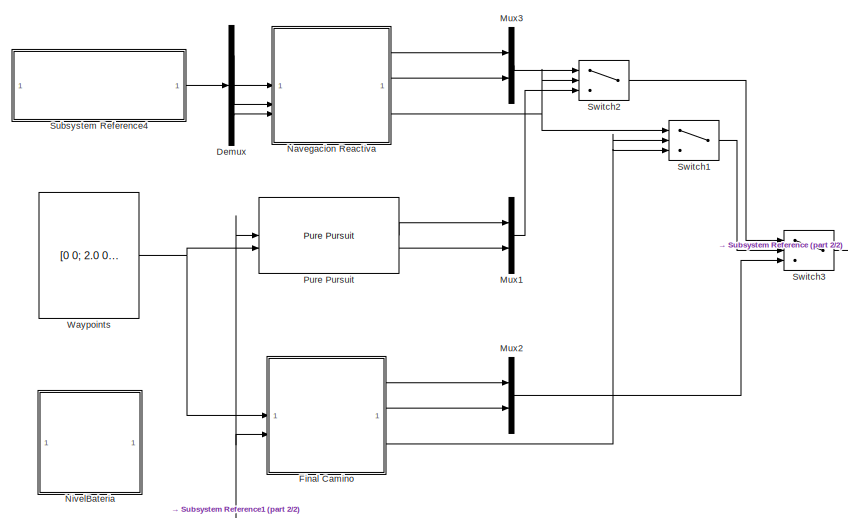
[diagram: root canvas - part 1/2, left side, full height]
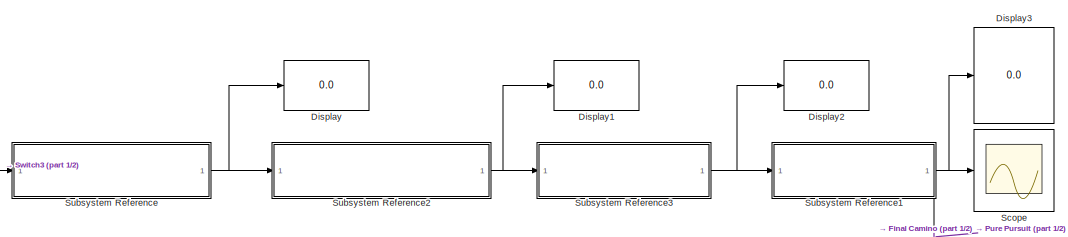
[diagram: root canvas - part 2/2, middle right region]
MODEL slx_3cca3829bd27
KIND model
CONFIG AbsTol = auto
CONFIG EnableMultiTasking = on
CONFIG FixedStep = auto
CONFIG MaxStep = auto
CONFIG MinStep = auto
CONFIG RelTol = 1e-3
CONFIG SampleTimeConstraint = Unconstrained
CONFIG SolverName = FixedStepDiscrete
CONFIG StartTime = 0.0
CONFIG StopTime = inf
WORKSPACE source: mxarray member
WORKSPACE d = 0.18
BLOCK [Demux] Demux
  Outputs = 3
BLOCK [Display] Display
  Decimation = 1
BLOCK [Display] Display1
  Decimation = 1
BLOCK [Display] Display2
  Decimation = 1
BLOCK [Display] Display3
  Decimation = 1
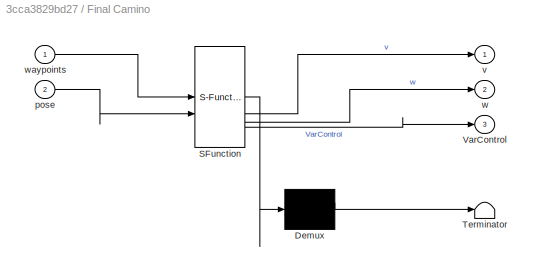
BLOCK [SubSystem] Final Camino
  ErrorFcn = Stateflow.Translate.translate
  PermitHierarchicalResolution = ExplicitOnly
  SFBlockType = MATLAB Function
  TreatAsAtomicUnit = on
BLOCK [Demux] Final Camino/ Demux 
  Outputs = 1
BLOCK [S-Function] Final Camino/ SFunction 
  EnableBusSupport = on
  FunctionName = sf_sfun
  PortCounts = [2 4]
  SFcnIsStateOwnerBlock = off
  SFunctionDeploymentMode = off
  Tag = Stateflow S-Function 5
BLOCK [Terminator] Final Camino/ Terminator 
BLOCK [Outport] Final Camino/VarControl
  Port = 3
BLOCK [Inport] Final Camino/pose
  Port = 2
BLOCK [Outport] Final Camino/v
BLOCK [Outport] Final Camino/w
  Port = 2
BLOCK [Inport] Final Camino/waypoints
BLOCK [Mux] Mux1
  DisplayOption = bar
  Inputs = 2
BLOCK [Mux] Mux2
  DisplayOption = bar
  Inputs = 2
BLOCK [Mux] Mux3
  DisplayOption = bar
  Inputs = 2
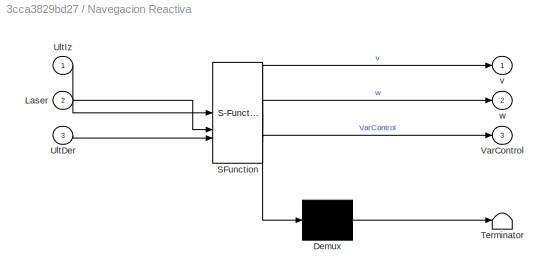
BLOCK [SubSystem] Navegacion Reactiva
  ErrorFcn = Stateflow.Translate.translate
  PermitHierarchicalResolution = ExplicitOnly
  SFBlockType = Chart
  TreatAsAtomicUnit = on
BLOCK [Demux] Navegacion Reactiva/ Demux 
  Outputs = 1
BLOCK [S-Function] Navegacion Reactiva/ SFunction 
  EnableBusSupport = on
  FunctionName = sf_sfun
  PortCounts = [3 4]
  SFcnIsStateOwnerBlock = off
  SFunctionDeploymentMode = off
  Tag = Stateflow S-Function 4
BLOCK [Terminator] Navegacion Reactiva/ Terminator 
BLOCK [Inport] Navegacion Reactiva/Laser
  Port = 2
BLOCK [Inport] Navegacion Reactiva/UltDer
  Port = 3
BLOCK [Inport] Navegacion Reactiva/UltIz
BLOCK [Outport] Navegacion Reactiva/VarControl
  Port = 3
BLOCK [Outport] Navegacion Reactiva/v
BLOCK [Outport] Navegacion Reactiva/w
  Port = 2
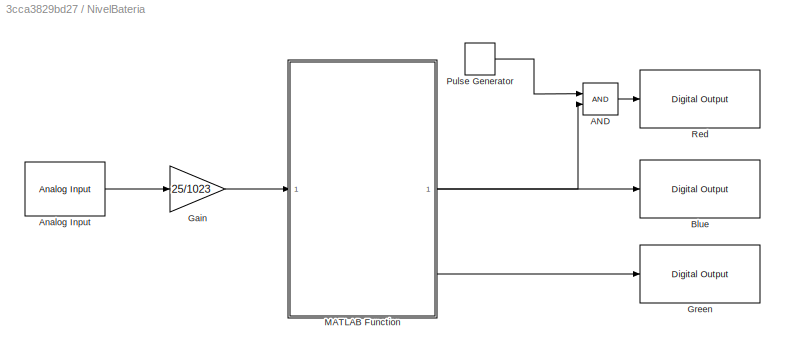
BLOCK [SubSystem] NivelBateria
BLOCK [Logic] NivelBateria/AND
  AllPortsSameDT = off
  IconShape = distinctive
  OutDataTypeStr = boolean
BLOCK [Reference] NivelBateria/Analog Input  REF=arduinolib/Analog Input
  SourceBlock = arduinolib/Analog Input
  SourceType = Arduino Analog Input
BLOCK [Reference] NivelBateria/Blue  REF=arduinolib/Digital Output
  SourceBlock = arduinolib/Digital Output
  SourceType = Arduino Digital Output
BLOCK [Gain] NivelBateria/Gain
  Gain = 25/1023
BLOCK [Reference] NivelBateria/Green  REF=arduinolib/Digital Output
  SourceBlock = arduinolib/Digital Output
  SourceType = Arduino Digital Output
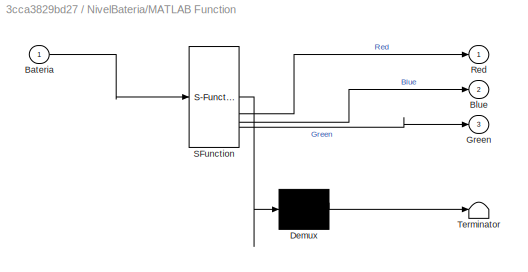
BLOCK [SubSystem] NivelBateria/MATLAB Function
  ErrorFcn = Stateflow.Translate.translate
  PermitHierarchicalResolution = ExplicitOnly
  SFBlockType = MATLAB Function
  TreatAsAtomicUnit = on
BLOCK [Demux] NivelBateria/MATLAB Function/ Demux 
  Outputs = 1
BLOCK [S-Function] NivelBateria/MATLAB Function/ SFunction 
  EnableBusSupport = on
  FunctionName = sf_sfun
  PortCounts = [1 4]
  SFcnIsStateOwnerBlock = off
  SFunctionDeploymentMode = off
  Tag = Stateflow S-Function 6
BLOCK [Terminator] NivelBateria/MATLAB Function/ Terminator 
BLOCK [Inport] NivelBateria/MATLAB Function/Bateria
BLOCK [Outport] NivelBateria/MATLAB Function/Blue
  Port = 2
BLOCK [Outport] NivelBateria/MATLAB Function/Green
  Port = 3
BLOCK [Outport] NivelBateria/MATLAB Function/Red
BLOCK [DiscretePulseGenerator] NivelBateria/Pulse Generator
  Period = 1
  PulseType = Time based
  PulseWidth = 5
BLOCK [Reference] NivelBateria/Red  REF=arduinolib/Digital Output
  SourceBlock = arduinolib/Digital Output
  SourceType = Arduino Digital Output
BLOCK [Reference] Pure Pursuit  REF=robotalgslib/Pure Pursuit
  LibrarySourceBlock = navlib/Control Algorithms/Pure Pursuit
  SourceBlock = robotalgslib/Pure Pursuit
  SourceType = nav.slalgs.internal.PurePursuit
BLOCK [Scope] Scope
  Floating = off
  NumInputPorts = 1
  ScopeSpecificationString = Simulink.scopes.TimeScopeBlockCfg('CurrentConfiguration', extmgr.ConfigurationSet(extmgr.Configuration('Core','General UI',true),extmgr.Configuration('Core','Source UI',true),extmgr.Configuration('Sources','WiredSimulink',true),extmgr.Configuration('Visuals','Time Domain',true,'SerializedDisplays',{struct('MinYLimReal','-0.48971','MaxYLimReal','1.9937','YLabelReal','','MinYLimMag','0.00000','MaxYL...<+1477ch>
BLOCK [SubSystem] Subsystem Reference
  ReferencedSubsystem = MyPieroMCI
BLOCK [SubSystem] Subsystem Reference1
  ReferencedSubsystem = Odometria
BLOCK [SubSystem] Subsystem Reference2
  ReferencedSubsystem = MyPieroControlVel
BLOCK [SubSystem] Subsystem Reference3
  ReferencedSubsystem = MyPieroMCD
BLOCK [SubSystem] Subsystem Reference4
  ReferencedSubsystem = MyPieroSensoresDistancia
BLOCK [Switch] Switch1
  Criteria = u2 > Threshold
  InputSameDT = off
  SaturateOnIntegerOverflow = off
BLOCK [Switch] Switch2
  Criteria = u2 > Threshold
  InputSameDT = off
  SaturateOnIntegerOverflow = off
BLOCK [Switch] Switch3
  Criteria = u2 > Threshold
  InputSameDT = off
  SaturateOnIntegerOverflow = off
  Threshold = -1
BLOCK [Constant] Waypoints
  Value = [0 0; 2.0 0; 2 -1.5; 3.5 -1.5]
LINE Demux:1 -> Navegacion Reactiva:1
LINE Demux:2 -> Navegacion Reactiva:2
LINE Demux:3 -> Navegacion Reactiva:3
LINE Final Camino:1 -> Mux2:1
LINE Final Camino:2 -> Mux2:2
NET Final Camino:3 -> Switch1:2, Switch1:3
LINE Mux1:1 -> Switch2:3
LINE Mux2:1 -> Switch3:3
LINE Mux3:1 -> Switch2:1
LINE Navegacion Reactiva:1 -> Mux3:1
LINE Navegacion Reactiva:2 -> Mux3:2
NET Navegacion Reactiva:3 -> Switch1:1, Switch2:2
LINE NivelBateria/AND:1 -> NivelBateria/Red:1
LINE NivelBateria/Analog Input:1 -> NivelBateria/Gain:1
LINE NivelBateria/Gain:1 -> NivelBateria/MATLAB Function:1
LINE NivelBateria/MATLAB Function:1 -> NivelBateria/AND:2
LINE NivelBateria/MATLAB Function:2 -> NivelBateria/Blue:1
LINE NivelBateria/MATLAB Function:3 -> NivelBateria/Green:1
LINE NivelBateria/Pulse Generator:1 -> NivelBateria/AND:1
LINE Pure Pursuit:1 -> Mux1:1
LINE Pure Pursuit:2 -> Mux1:2
NET Subsystem Reference1:1 -> Display3:1, Final Camino:2, Pure Pursuit:1, Scope:1
NET Subsystem Reference2:1 -> Display1:1, Subsystem Reference3:1
NET Subsystem Reference3:1 -> Display2:1, Subsystem Reference1:1
LINE Subsystem Reference4:1 -> Demux:1
NET Subsystem Reference:1 -> Display:1, Subsystem Reference2:1
LINE Switch1:1 -> Switch3:2
LINE Switch2:1 -> Switch3:1
LINE Switch3:1 -> Subsystem Reference:1
NET Waypoints:1 -> Final Camino:1, Pure Pursuit:2
note: NET lines group one-source signal fan-out (src -> all destinations, sorted); 1:1 wires keep LINE
CHART NivelBateria/MATLAB Function states=1 transitions=1
  STATE_LABEL 'eML_blk_kernel()'
  STATE_LABEL 'SCRIPT:\nfunction [Red,Blue,Green] = NivelBateria(Bateria)\nif (Bateria >= 12.1)\n    Green = 1;\n    Blue = 0;\n    Red = 0;\nelseif ((Bateria < 12.1) &&(Bateria >= 11.5))\n    Green = 0;\n    Blue = 1;\n    Red = 0;\nelse\n    Green = 0;\n    Blue = 0;\n    Red = 1;\nend\n\n'
CHART Navegacion Reactiva states=9 transitions=25
  STATE_LABEL 'TightWay\n% Con esto intentare que\n% pase por un camino\n% estrecho hasta donde\n% pueda\nentry:\nVarControl = 1;\nv = 0.5;\nw = 0;\n'
  STATE_LABEL 'FullRotation\n% Si detecta algo\n% en todos los sentidos\nentry:\nVarControl = 1;\nv = 0;\nw = -pi + 0.1;'
  STATE_LABEL 'Default\nentry:\nVarControl = 0;\nv = 0.2;\nw = 0;\n'
  STATE_LABEL 'LeftSonar_Far\n% Si solo detecta el\n% Obstaculo con el\n% ultrasonidos izquierdo\n% lejos\nentry:\nVarControl = 1;\nv = 0.2;\nw = -pi/8;\n'
  STATE_LABEL 'LeftSonar_Close\n% Si solo detecta el\n% Obstaculo con el\n% ultrasonidos izquierdo\n% cerca\nentry:\nVarControl = 1;\nv = 0;\nw = -pi/4;\n'
  STATE_LABEL 'MidLaser\nentry:\nVarControl = 1;\nv = 0;\nw = 0;\n% Calculo el signo para\n% la rotacion aleatoria\nif round(rand) == 0\n    sign = -1;\nelse\n    sign = 1;\nend\n'
  STATE_LABEL 'RightSonar_Close\n% Si solo detecta el\n% Obstaculo con el\n% ultrasonidos derecho\n% cerca\nentry:\nVarControl = 1;\nv = 0;\nw = pi/4;'
  STATE_LABEL 'RightSonar_Far\n% Si solo detecta el\n% Obstaculo con el\n% ultrasonidos izquierdo\n% lejos\nentry:\nVarControl = 1;\nv = 0.2;\nw = pi/8;\n'
  STATE_LABEL 'RandomRotation\n% Si solo detecta el\n% Obstaculo con el\n% Laser\nentry:\nVarControl = 1;\nv =  0;\nw = sign*pi/4;'
CHART Final Camino states=1 transitions=1
  STATE_LABEL 'eML_blk_kernel()'
  STATE_LABEL 'SCRIPT:\nfunction [v,w,VarControl] = FinalCamino(waypoints, pose)\nPoseX = pose(1); \nPoseY = pose(2);\n\nw = 0;\n\n[N,~] = size(waypoints);\nXFin = waypoints(N,1);\nYFin = waypoints(N,2);\n\nif ((PoseX <= (XFin + 0.2)) && (PoseX >= (XFin - 0.2))) && ((PoseY <= (YFin + 0.2)) && (PoseY >= (YFin - 0.2)))  \n    VarControl = -1;\n    v = 0;\nelse\n    VarControl = 0;\n    v = 0.3;\nend'
CHART  states=0 transitions=0
CHART  states=0 transitions=0
CHART  states=0 transitions=0
